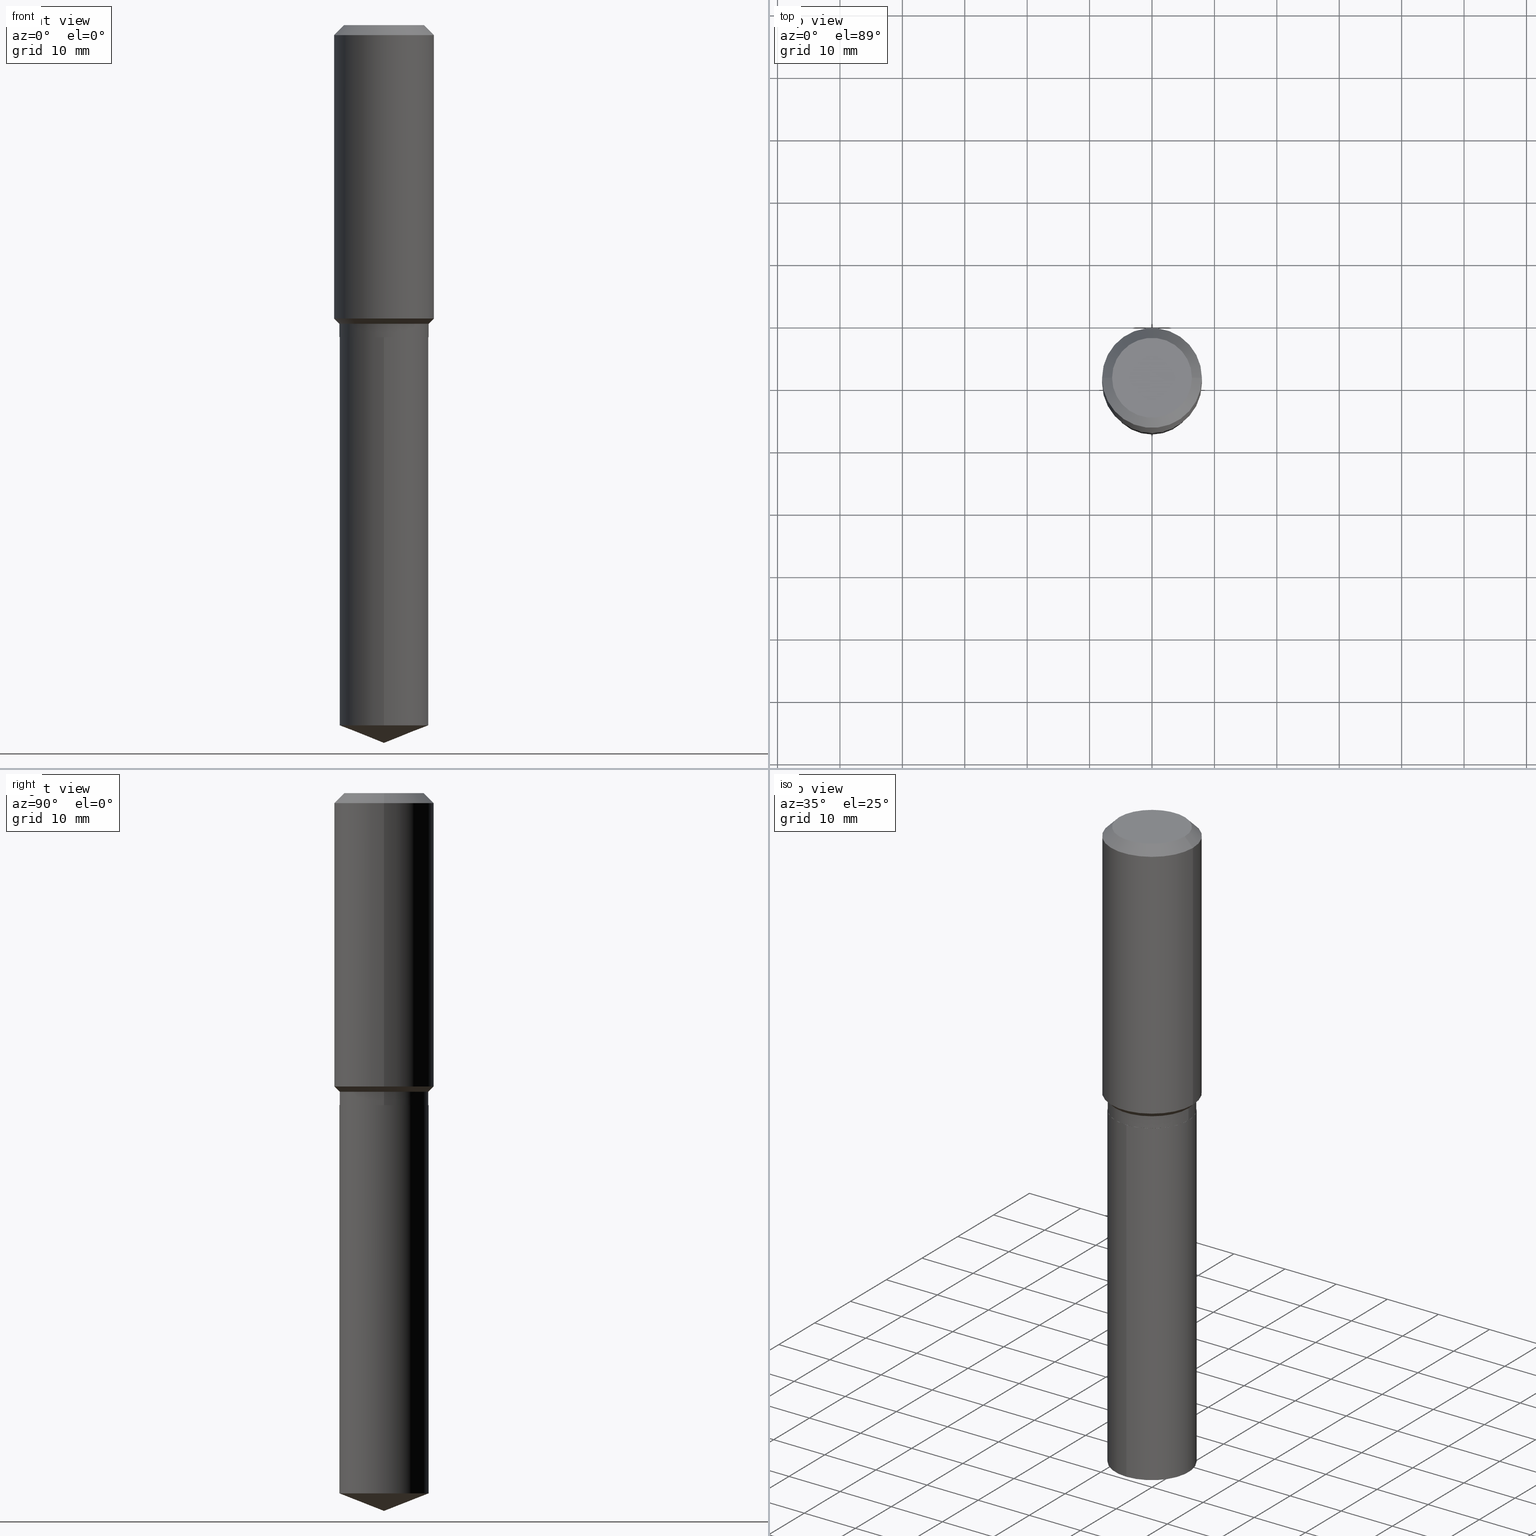
[diagram: canonical four-view strip — front | top / right | iso, engineering-drawing reading convention]
A machine part, canonical four-view strip (front | top / right | iso — engineering-drawing reading convention). The complete STEP part file that produces these views, byte-faithful:
ISO-10303-21;
HEADER;
FILE_DESCRIPTION (( 'STEP AP203' ),
    '1' );
FILE_NAME ('56430.STEP',
    '2024-04-24T17:37:38',
    ( '' ),
    ( '' ),
    'SwSTEP 2.0',
    'SolidWorks 2023',
    '' );
FILE_SCHEMA (( 'CONFIG_CONTROL_DESIGN' ));
ENDSEC;

DATA;
#1 = ORIENTED_EDGE ( 'NONE', *, *, #466, .T. ) ;
#2 = FACE_OUTER_BOUND ( 'NONE', #65, .T. ) ;
#3 = EDGE_CURVE ( 'NONE', #12, #281, #351, .T. ) ;
#4 = DIRECTION ( 'NONE',  ( -2.445468806185136877E-29, 3.491481338843145188E-15, 1.000000000000000000 ) ) ;
#5 = CIRCLE ( 'NONE', #58, 0.2807499999999999996 ) ;
#6 = AXIS2_PLACEMENT_3D ( 'NONE', #127, #240, #159 ) ;
#7 = DIRECTION ( 'NONE',  ( 1.000000000000000000, -6.982962677686266711E-15, 4.876176775795935793E-29 ) ) ;
#8 = ORIENTED_EDGE ( 'NONE', *, *, #27, .T. ) ;
#9 = DIRECTION ( 'NONE',  ( -1.000000000000000000, 6.982962677686265922E-15, -4.876176775795935793E-29 ) ) ;
#10 = EDGE_LOOP ( 'NONE', ( #41, #243, #1, #232 ) ) ;
#11 = EDGE_CURVE ( 'NONE', #342, #281, #14, .T. ) ;
#12 = VERTEX_POINT ( 'NONE', #48 ) ;
#13 = DIRECTION ( 'NONE',  ( -2.445161175172823126E-29, 3.491921883962048973E-15, 1.000000000000000000 ) ) ;
#14 = CIRCLE ( 'NONE', #203, 0.2812500000000000000 ) ;
#15 = AXIS2_PLACEMENT_3D ( 'NONE', #31, #258, #405 ) ;
#16 = CARTESIAN_POINT ( 'NONE',  ( -1.963958253099214392E-15, -0.2812500000000068834, -1.968499999999998362 ) ) ;
#17 = EDGE_CURVE ( 'NONE', #388, #33, #192, .T. ) ;
#18 = PERSON_AND_ORGANIZATION ( #182, #422 ) ;
#19 = DIRECTION ( 'NONE',  ( -2.445161175172823126E-29, 3.491921883962048579E-15, 1.000000000000000000 ) ) ;
#20 = APPROVAL_ROLE ( '' ) ;
#21 = CARTESIAN_POINT ( 'NONE',  ( 1.080042445169747483E-28, -1.542229763716328320E-14, -4.416812678733299080 ) ) ;
#22 = MANIFOLD_SOLID_BREP ( 'Body-Move/Copy2[2]', #470 ) ;
#23 = PERSON_AND_ORGANIZATION ( #182, #422 ) ;
#24 = CARTESIAN_POINT ( 'NONE',  ( 1.107071173671247307E-28, -1.581002552182656904E-14, -4.527599999999999625 ) ) ;
#25 = AXIS2_PLACEMENT_3D ( 'NONE', #32, #185, #333 ) ;
#26 = CYLINDRICAL_SURFACE ( 'NONE', #235, 0.2812500000000000000 ) ;
#27 = EDGE_CURVE ( 'NONE', #76, #33, #431, .T. ) ;
#28 = CARTESIAN_POINT ( 'NONE',  ( 4.813905344975440153E-29, -6.872981015512730130E-15, -1.968499999999999472 ) ) ;
#29 = CARTESIAN_POINT ( 'NONE',  ( 0.000000000000000000, 0.000000000000000000, 0.000000000000000000 ) ) ;
#30 = EDGE_CURVE ( 'NONE', #202, #12, #100, .T. ) ;
#31 = CARTESIAN_POINT ( 'NONE',  ( 4.812682610572347912E-29, -6.871235274843308626E-15, -1.967999999999999527 ) ) ;
#32 = CARTESIAN_POINT ( 'NONE',  ( -9.427742298522569579E-47, 1.346031739168368629E-32, 3.855188123715871501E-18 ) ) ;
#33 = VERTEX_POINT ( 'NONE', #214 ) ;
#34 = CARTESIAN_POINT ( 'NONE',  ( 0.3149500000000000077, -2.380642253931875190E-15, -0.06299000000000037902 ) ) ;
#35 = EDGE_LOOP ( 'NONE', ( #116, #316, #349, #442 ) ) ;
#36 = MANIFOLD_SOLID_BREP ( 'Body-Move/Copy2[1]', #477 ) ;
#37 = LOCAL_TIME ( 13, 37, 38.00000000000000000, #134 ) ;
#38 = CARTESIAN_POINT ( 'NONE',  ( -0.2812500000000000000, -4.726366188353557576E-15, -1.967999999999999527 ) ) ;
#39 = CC_DESIGN_PERSON_AND_ORGANIZATION_ASSIGNMENT ( #465, #92, ( #432 ) ) ;
#40 = DIRECTION ( 'NONE',  ( 1.000000000000000000, -6.982962677686264344E-15, 0.000000000000000000 ) ) ;
#41 = ORIENTED_EDGE ( 'NONE', *, *, #310, .F. ) ;
#42 = AXIS2_PLACEMENT_3D ( 'NONE', #474, #139, #435 ) ;
#43 = VECTOR ( 'NONE', #365, 39.37007874015748143 ) ;
#44 = DIRECTION ( 'NONE',  ( 1.000000000000000000, -6.982962677686266711E-15, 0.000000000000000000 ) ) ;
#45 = EDGE_CURVE ( 'NONE', #12, #202, #406, .T. ) ;
#46 = EDGE_LOOP ( 'NONE', ( #462, #83, #234, #298 ) ) ;
#47 = DIRECTION ( 'NONE',  ( -2.445161175172823126E-29, 3.491921883962048579E-15, 1.000000000000000000 ) ) ;
#48 = CARTESIAN_POINT ( 'NONE',  ( -1.963958253099154044E-15, -0.2812500000000154321, -4.416812678733297304 ) ) ;
#49 = CARTESIAN_POINT ( 'NONE',  ( -0.3149500000000000077, 1.979355685803558833E-15, -0.06299000000000037902 ) ) ;
#50 = ORIENTED_EDGE ( 'NONE', *, *, #121, .T. ) ;
#51 = DATE_AND_TIME ( #284, #314 ) ;
#52 = CARTESIAN_POINT ( 'NONE',  ( 1.540400801016026505E-30, -2.199284095337310628E-16, -0.06299000000000037902 ) ) ;
#53 = ADVANCED_FACE ( 'NONE', ( #398 ), #373, .T. ) ;
#54 = DIRECTION ( 'NONE',  ( -6.982962677686266711E-15, -1.000000000000000000, 3.498627837349990023E-15 ) ) ;
#55 = DIRECTION ( 'NONE',  ( 0.000000000000000000, 0.000000000000000000, 1.000000000000000000 ) ) ;
#56 = CARTESIAN_POINT ( 'NONE',  ( -9.427742298522569579E-47, 1.346031739168368629E-32, 3.855188123715871501E-18 ) ) ;
#57 = EDGE_CURVE ( 'NONE', #388, #423, #195, .T. ) ;
#58 = AXIS2_PLACEMENT_3D ( 'NONE', #402, #136, #287 ) ;
#59 = DIRECTION ( 'NONE',  ( -2.445161175172823126E-29, 3.491921883962048579E-15, 1.000000000000000000 ) ) ;
#60 = APPROVAL_PERSON_ORGANIZATION ( #434, #318, #20 ) ;
#61 = FACE_OUTER_BOUND ( 'NONE', #35, .T. ) ;
#62 = CARTESIAN_POINT ( 'NONE',  ( 0.3149500000000001743, -2.199284095337290660E-15, 1.535751875536930690E-29 ) ) ;
#63 = EDGE_CURVE ( 'NONE', #281, #342, #278, .T. ) ;
#64 = DIRECTION ( 'NONE',  ( 1.000000000000000000, -6.982962677686266711E-15, 0.000000000000000000 ) ) ;
#65 = EDGE_LOOP ( 'NONE', ( #391, #416, #70, #332 ) ) ;
#66 = CIRCLE ( 'NONE', #322, 0.2807499999999999996 ) ;
#67 = VECTOR ( 'NONE', #375, 39.37007874015748143 ) ;
#68 = DESIGN_CONTEXT ( 'detailed design', #257, 'design' ) ;
#69 = CARTESIAN_POINT ( 'NONE',  ( 0.2807499999999999996, -8.833447787273150424E-15, -1.968499999999999472 ) ) ;
#70 = ORIENTED_EDGE ( 'NONE', *, *, #291, .F. ) ;
#71 = DIRECTION ( 'NONE',  ( -2.445468806185136597E-29, 3.491481338843145583E-15, 1.000000000000000000 ) ) ;
#72 = ORIENTED_EDGE ( 'NONE', *, *, #433, .F. ) ;
#73 = DIRECTION ( 'NONE',  ( -2.445468806185136597E-29, 3.491481338843145583E-15, 1.000000000000000000 ) ) ;
#74 = ADVANCED_FACE ( 'NONE', ( #292 ), #358, .T. ) ;
#75 = APPROVAL_STATUS ( 'not_yet_approved' ) ;
#76 = VERTEX_POINT ( 'NONE', #103 ) ;
#77 = VECTOR ( 'NONE', #325, 39.37007874015748143 ) ;
#78 = CONICAL_SURFACE ( 'NONE', #352, 0.2807499999999999996, 0.7853981633975507526 ) ;
#79 = LINE ( 'NONE', #385, #156 ) ;
#80 = DIRECTION ( 'NONE',  ( -0.7071067811865453523, 2.468850131082234184E-15, -0.7071067811865496822 ) ) ;
#81 = ORIENTED_EDGE ( 'NONE', *, *, #433, .T. ) ;
#82 = EDGE_CURVE ( 'NONE', #152, #131, #93, .T. ) ;
#83 = ORIENTED_EDGE ( 'NONE', *, *, #439, .T. ) ;
#84 = CONICAL_SURFACE ( 'NONE', #173, 0.2807499999999999996, 0.7853981633975507526 ) ;
#85 = APPLICATION_PROTOCOL_DEFINITION ( 'international standard', 'config_control_design', 1994, #356 ) ;
#86 = ORIENTED_EDGE ( 'NONE', *, *, #439, .F. ) ;
#87 = DIRECTION ( 'NONE',  ( -0.7071067811865472397, 7.493145998870354160E-15, 0.7071067811865477948 ) ) ;
#88 = ORIENTED_EDGE ( 'NONE', *, *, #153, .F. ) ;
#89 = CALENDAR_DATE ( 2024, 24, 4 ) ;
#90 = DIRECTION ( 'NONE',  ( -2.445161175172823126E-29, 3.491921883962048973E-15, 1.000000000000000000 ) ) ;
#91 = EDGE_CURVE ( 'NONE', #274, #202, #361, .T. ) ;
#92 = PERSON_AND_ORGANIZATION_ROLE ( 'design_supplier' ) ;
#93 = CIRCLE ( 'NONE', #210, 0.2519600000000000173 ) ;
#94 = CONICAL_SURFACE ( 'NONE', #384, 0.3149500000000000077, 0.7853981633974452814 ) ;
#95 = FACE_OUTER_BOUND ( 'NONE', #413, .T. ) ;
#96 = DATE_AND_TIME ( #286, #37 ) ;
#97 = DIRECTION ( 'NONE',  ( 1.000000000000000000, -6.982962677686266711E-15, 0.000000000000000000 ) ) ;
#98 = EDGE_CURVE ( 'NONE', #33, #76, #306, .T. ) ;
#99 = DIRECTION ( 'NONE',  ( -2.438088387897960049E-29, 3.491481338843145188E-15, 1.000000000000000000 ) ) ;
#100 = CIRCLE ( 'NONE', #155, 0.2812500000000000000 ) ;
#101 = FACE_OUTER_BOUND ( 'NONE', #485, .T. ) ;
#102 = APPROVAL_PERSON_ORGANIZATION ( #397, #379, #338 ) ;
#103 = CARTESIAN_POINT ( 'NONE',  ( 0.3149500000000000077, -2.419212504871020909E-15, -0.06299000000000037902 ) ) ;
#104 = ADVANCED_FACE ( 'NONE', ( #101 ), #163, .T. ) ;
#105 = DIRECTION ( 'NONE',  ( 1.000000000000000000, -6.982962677686268288E-15, 0.000000000000000000 ) ) ;
#106 = EDGE_LOOP ( 'NONE', ( #301, #219, #368, #376 ) ) ;
#107 = DIRECTION ( 'NONE',  ( -1.000000000000000000, 6.982962677686266711E-15, 0.000000000000000000 ) ) ;
#108 = ORIENTED_EDGE ( 'NONE', *, *, #17, .T. ) ;
#109 = AXIS2_PLACEMENT_3D ( 'NONE', #256, #467, #54 ) ;
#110 = VECTOR ( 'NONE', #143, 39.37007874015748143 ) ;
#111 = FACE_OUTER_BOUND ( 'NONE', #420, .T. ) ;
#112 = ORIENTED_EDGE ( 'NONE', *, *, #11, .T. ) ;
#113 = EDGE_CURVE ( 'NONE', #222, #224, #5, .T. ) ;
#114 = PLANE ( 'NONE',  #362 ) ;
#115 = DIRECTION ( 'NONE',  ( 2.445468806185136597E-29, -3.491481338843145583E-15, -1.000000000000000000 ) ) ;
#116 = ORIENTED_EDGE ( 'NONE', *, *, #425, .F. ) ;
#117 = CIRCLE ( 'NONE', #25, 0.2519600000000000173 ) ;
#118 = CC_DESIGN_APPROVAL ( #379, ( #252 ) ) ;
#119 = DIRECTION ( 'NONE',  ( -6.982962677686266711E-15, -1.000000000000000000, 3.885294924322507688E-15 ) ) ;
#120 = DIRECTION ( 'NONE',  ( -2.445468806185136597E-29, 3.491481338843145583E-15, 1.000000000000000000 ) ) ;
#121 = EDGE_CURVE ( 'NONE', #274, #12, #209, .T. ) ;
#122 = DIRECTION ( 'NONE',  ( -2.445468806185136597E-29, 3.491481338843145583E-15, 1.000000000000000000 ) ) ;
#123 = ORIENTED_EDGE ( 'NONE', *, *, #82, .F. ) ;
#124 = DIRECTION ( 'NONE',  ( -2.445468806185136597E-29, 3.491481338843145583E-15, 1.000000000000000000 ) ) ;
#125 = ORIENTED_EDGE ( 'NONE', *, *, #244, .F. ) ;
#126 = AXIS2_PLACEMENT_3D ( 'NONE', #176, #99, #251 ) ;
#127 = CARTESIAN_POINT ( 'NONE',  ( 4.813905344975440153E-29, -6.872981015512730130E-15, -1.968499999999999472 ) ) ;
#128 = ORIENTED_EDGE ( 'NONE', *, *, #82, .T. ) ;
#129 = APPROVAL_ROLE ( '' ) ;
#130 = ADVANCED_FACE ( 'NONE', ( #61 ), #382, .T. ) ;
#131 = VERTEX_POINT ( 'NONE', #363 ) ;
#132 = COORDINATED_UNIVERSAL_TIME_OFFSET ( 5, 0, .BEHIND. ) ;
#133 = DIRECTION ( 'NONE',  ( -2.445161175172823126E-29, 3.491921883962048579E-15, 1.000000000000000000 ) ) ;
#134 = COORDINATED_UNIVERSAL_TIME_OFFSET ( 5, 0, .BEHIND. ) ;
#135 = CIRCLE ( 'NONE', #453, 0.3149500000000002298 ) ;
#136 = DIRECTION ( 'NONE',  ( -2.445468806185136597E-29, 3.491481338843145583E-15, 1.000000000000000000 ) ) ;
#137 = ADVANCED_FACE ( 'NONE', ( #436 ), #293, .F. ) ;
#138 = COORDINATED_UNIVERSAL_TIME_OFFSET ( 5, 0, .BEHIND. ) ;
#139 = DIRECTION ( 'NONE',  ( -2.445468806185136597E-29, 3.491481338843145583E-15, 1.000000000000000000 ) ) ;
#140 = CARTESIAN_POINT ( 'NONE',  ( 1.540400801016026505E-30, -2.199284095337310628E-16, -0.06299000000000037902 ) ) ;
#141 = CARTESIAN_POINT ( 'NONE',  ( -0.2807499999999999996, -4.878132284866248466E-15, -1.968499999999999472 ) ) ;
#142 = VECTOR ( 'NONE', #302, 39.37007874015748143 ) ;
#143 = DIRECTION ( 'NONE',  ( -2.445468806185136877E-29, 3.491481338843145188E-15, 1.000000000000000000 ) ) ;
#144 = ORIENTED_EDGE ( 'NONE', *, *, #466, .F. ) ;
#145 = CARTESIAN_POINT ( 'NONE',  ( 0.000000000000000000, 0.000000000000000000, 0.000000000000000000 ) ) ;
#146 = DIRECTION ( 'NONE',  ( -2.445468806185136597E-29, 3.491481338843145583E-15, 1.000000000000000000 ) ) ;
#147 = ORIENTED_EDGE ( 'NONE', *, *, #291, .T. ) ;
#148 = AXIS2_PLACEMENT_3D ( 'NONE', #463, #124, #7 ) ;
#149 = ADVANCED_FACE ( 'NONE', ( #399 ), #26, .T. ) ;
#150 = DIRECTION ( 'NONE',  ( -2.445468806185136597E-29, 3.491481338843145583E-15, 1.000000000000000000 ) ) ;
#151 = DIRECTION ( 'NONE',  ( 0.7071067811865453523, -7.319954787623248157E-15, -0.7071067811865496822 ) ) ;
#152 = VERTEX_POINT ( 'NONE', #326 ) ;
#153 = EDGE_CURVE ( 'NONE', #224, #197, #476, .T. ) ;
#154 = ORIENTED_EDGE ( 'NONE', *, *, #360, .F. ) ;
#155 = AXIS2_PLACEMENT_3D ( 'NONE', #254, #59, #285 ) ;
#156 = VECTOR ( 'NONE', #13, 39.37007874015748143 ) ;
#157 = FACE_OUTER_BOUND ( 'NONE', #265, .T. ) ;
#158 = EDGE_LOOP ( 'NONE', ( #411, #309 ) ) ;
#159 = DIRECTION ( 'NONE',  ( 6.982962677686265922E-15, 1.000000000000000000, -3.491921883962048973E-15 ) ) ;
#160 = ORIENTED_EDGE ( 'NONE', *, *, #98, .T. ) ;
#161 = ORIENTED_EDGE ( 'NONE', *, *, #3, .T. ) ;
#162 = CC_DESIGN_PERSON_AND_ORGANIZATION_ASSIGNMENT ( #242, #390, ( #175 ) ) ;
#163 = CONICAL_SURFACE ( 'NONE', #245, 0.3149500000000000077, 0.7853981633974452814 ) ;
#164 = AXIS2_PLACEMENT_3D ( 'NONE', #206, #55, #208 ) ;
#165 = CYLINDRICAL_SURFACE ( 'NONE', #148, 0.2812500000000000000 ) ;
#166 = CARTESIAN_POINT ( 'NONE',  ( -0.3149500000000001743, 2.237854346276436774E-15, -1.549218606675783237E-29 ) ) ;
#167 = DATE_AND_TIME ( #89, #336 ) ;
#168 = DIRECTION ( 'NONE',  ( 1.000000000000000000, -6.982962677686266711E-15, 4.876115136096691995E-29 ) ) ;
#169 = SECURITY_CLASSIFICATION_LEVEL ( 'unclassified' ) ;
#170 = ADVANCED_FACE ( 'NONE', ( #95 ), #345, .T. ) ;
#171 = DIRECTION ( 'NONE',  ( 1.000000000000000000, -6.982962677686265922E-15, 4.876176775795935232E-29 ) ) ;
#172 = MECHANICAL_CONTEXT ( 'NONE', #356, 'mechanical' ) ;
#173 = AXIS2_PLACEMENT_3D ( 'NONE', #294, #441, #105 ) ;
#174 = DIRECTION ( 'NONE',  ( -6.497071151882123780E-15, -0.9304175679820250178, 0.3665012267242958033 ) ) ;
#175 = PRODUCT ( '56430', '56430', '', ( #172 ) ) ;
#176 = CARTESIAN_POINT ( 'NONE',  ( 4.813905344975440153E-29, -6.872981015512730130E-15, -1.968499999999999472 ) ) ;
#177 = DIRECTION ( 'NONE',  ( -2.445161175172823126E-29, 3.491921883962048579E-15, 1.000000000000000000 ) ) ;
#178 = EDGE_CURVE ( 'NONE', #224, #222, #66, .T. ) ;
#179 = AXIS2_PLACEMENT_3D ( 'NONE', #207, #19, #213 ) ;
#180 = CARTESIAN_POINT ( 'NONE',  ( -1.963958253099214392E-15, -0.2812500000000068834, -1.968499999999998362 ) ) ;
#181 = VECTOR ( 'NONE', #415, 39.37007874015748143 ) ;
#182 = PERSON ( 'UNSPECIFIED', 'UNSPECIFIED', 'UNSPECIFIED', ('UNSPECIFIED'), ('UNSPECIFIED'), ('UNSPECIFIED') ) ;
#183 = CARTESIAN_POINT ( 'NONE',  ( 1.998401444325390241E-15, 0.2812499999999931166, -1.968500000000000583 ) ) ;
#184 = ORIENTED_EDGE ( 'NONE', *, *, #30, .F. ) ;
#185 = DIRECTION ( 'NONE',  ( -2.445468806185136597E-29, 3.491481338843145583E-15, 1.000000000000000000 ) ) ;
#186 = LINE ( 'NONE', #490, #142 ) ;
#187 = ORIENTED_EDGE ( 'NONE', *, *, #220, .T. ) ;
#188 = AXIS2_PLACEMENT_3D ( 'NONE', #237, #315, #44 ) ;
#189 = LINE ( 'NONE', #62, #67 ) ;
#190 = ORIENTED_EDGE ( 'NONE', *, *, #27, .F. ) ;
#191 = CARTESIAN_POINT ( 'NONE',  ( 0.2812500000000000000, -8.835193527942572716E-15, -1.967999999999999527 ) ) ;
#192 = LINE ( 'NONE', #166, #270 ) ;
#193 = DIRECTION ( 'NONE',  ( -6.982962677686266711E-15, -1.000000000000000000, 3.498627837349990023E-15 ) ) ;
#194 = ORIENTED_EDGE ( 'NONE', *, *, #344, .T. ) ;
#195 = CIRCLE ( 'NONE', #42, 0.3149500000000002298 ) ;
#196 = CARTESIAN_POINT ( 'NONE',  ( -0.2812500000000000000, -4.579898546189087510E-15, -1.884099999999999664 ) ) ;
#197 = VERTEX_POINT ( 'NONE', #38 ) ;
#198 = LENGTH_MEASURE_WITH_UNIT ( LENGTH_MEASURE( 0.02539999999999999897 ), #380 );
#199 = ORIENTED_EDGE ( 'NONE', *, *, #121, .F. ) ;
#200 = EDGE_CURVE ( 'NONE', #222, #386, #296, .T. ) ;
#201 = FACE_OUTER_BOUND ( 'NONE', #330, .T. ) ;
#202 = VERTEX_POINT ( 'NONE', #447 ) ;
#203 = AXIS2_PLACEMENT_3D ( 'NONE', #457, #239, #307 ) ;
#204 = DATE_TIME_ROLE ( 'creation_date' ) ;
#205 = DIRECTION ( 'NONE',  ( -6.982962677686266711E-15, -1.000000000000000000, 3.885294924322507688E-15 ) ) ;
#206 = CARTESIAN_POINT ( 'NONE',  ( 0.000000000000000000, 0.000000000000000000, 0.000000000000000000 ) ) ;
#207 = CARTESIAN_POINT ( 'NONE',  ( 4.813905344975440153E-29, -6.872981015512730130E-15, -1.968499999999999472 ) ) ;
#208 = DIRECTION ( 'NONE',  ( 1.000000000000000000, 0.000000000000000000, 0.000000000000000000 ) ) ;
#209 = LINE ( 'NONE', #24, #421 ) ;
#210 = AXIS2_PLACEMENT_3D ( 'NONE', #56, #321, #168 ) ;
#211 = LOCAL_TIME ( 13, 37, 38.00000000000000000, #138 ) ;
#212 = CC_DESIGN_SECURITY_CLASSIFICATION ( #252, ( #432 ) ) ;
#213 = DIRECTION ( 'NONE',  ( -6.982962677686266711E-15, -1.000000000000000000, 3.885294924322507688E-15 ) ) ;
#214 = CARTESIAN_POINT ( 'NONE',  ( -0.3149500000000000077, -1.102428393188106153E-15, -0.06299000000000037902 ) ) ;
#215 = ADVANCED_FACE ( 'NONE', ( #331 ), #94, .T. ) ;
#216 = LINE ( 'NONE', #34, #366 ) ;
#217 = AXIS2_PLACEMENT_3D ( 'NONE', #52, #323, #97 ) ;
#218 = CARTESIAN_POINT ( 'NONE',  ( 1.540400801016026505E-30, -2.199284095337310628E-16, -0.06299000000000037902 ) ) ;
#219 = ORIENTED_EDGE ( 'NONE', *, *, #57, .T. ) ;
#220 = EDGE_CURVE ( 'NONE', #277, #346, #327, .T. ) ;
#221 = CARTESIAN_POINT ( 'NONE',  ( 4.812682610572347912E-29, -6.871235274843308626E-15, -1.967999999999999527 ) ) ;
#222 = VERTEX_POINT ( 'NONE', #69 ) ;
#223 = CYLINDRICAL_SURFACE ( 'NONE', #299, 0.2812500000000000000 ) ;
#224 = VERTEX_POINT ( 'NONE', #482 ) ;
#225 = CYLINDRICAL_SURFACE ( 'NONE', #393, 0.3149500000000001743 ) ;
#226 = AXIS2_PLACEMENT_3D ( 'NONE', #21, #133, #319 ) ;
#227 = AXIS2_PLACEMENT_3D ( 'NONE', #221, #340, #329 ) ;
#228 = CARTESIAN_POINT ( 'NONE',  ( -4.713871149261284790E-47, 6.730158695841843144E-33, 1.927594061857935750E-18 ) ) ;
#229 = EDGE_LOOP ( 'NONE', ( #128, #194 ) ) ;
#230 = CC_DESIGN_DATE_AND_TIME_ASSIGNMENT ( #96, #249, ( #252 ) ) ;
#231 = DIRECTION ( 'NONE',  ( -2.445161175172823126E-29, 3.491921883962048579E-15, 1.000000000000000000 ) ) ;
#232 = ORIENTED_EDGE ( 'NONE', *, *, #389, .F. ) ;
#233 = CARTESIAN_POINT ( 'NONE',  ( 0.2812500000000000000, -1.963958253099262512E-15, 1.371424718192607012E-29 ) ) ;
#234 = ORIENTED_EDGE ( 'NONE', *, *, #63, .F. ) ;
#235 = AXIS2_PLACEMENT_3D ( 'NONE', #28, #177, #205 ) ;
#236 = CONICAL_SURFACE ( 'NONE', #347, 99.94676754584037326, 1.195550537616120845 ) ;
#237 = CARTESIAN_POINT ( 'NONE',  ( 4.607507777733415285E-29, -6.578299990514369283E-15, -1.884099999999999664 ) ) ;
#238 = APPROVAL ( #357, 'UNSPECIFIED' ) ;
#239 = DIRECTION ( 'NONE',  ( -2.445161175172823126E-29, 3.491921883962048579E-15, 1.000000000000000000 ) ) ;
#240 = DIRECTION ( 'NONE',  ( 2.445161175172822285E-29, -3.491921883962048973E-15, -1.000000000000000000 ) ) ;
#241 = EDGE_LOOP ( 'NONE', ( #383, #108, #190, #283 ) ) ;
#242 = PERSON_AND_ORGANIZATION ( #182, #422 ) ;
#243 = ORIENTED_EDGE ( 'NONE', *, *, #339, .T. ) ;
#244 = EDGE_CURVE ( 'NONE', #131, #76, #216, .T. ) ;
#245 = AXIS2_PLACEMENT_3D ( 'NONE', #140, #248, #469 ) ;
#246 =( GEOMETRIC_REPRESENTATION_CONTEXT ( 3 ) GLOBAL_UNCERTAINTY_ASSIGNED_CONTEXT ( ( #479 ) ) GLOBAL_UNIT_ASSIGNED_CONTEXT ( ( #456, #305, #419 ) ) REPRESENTATION_CONTEXT ( 'NONE', 'WORKASPACE' ) );
#247 = DATE_AND_TIME ( #282, #211 ) ;
#248 = DIRECTION ( 'NONE',  ( 2.445468806185136597E-29, -3.491481338843145583E-15, -1.000000000000000000 ) ) ;
#249 = DATE_TIME_ROLE ( 'classification_date' ) ;
#250 = CARTESIAN_POINT ( 'NONE',  ( 0.000000000000000000, 0.000000000000000000, 0.000000000000000000 ) ) ;
#251 = DIRECTION ( 'NONE',  ( 1.000000000000000000, -6.982962677686265922E-15, 4.876176775795935793E-29 ) ) ;
#252 = SECURITY_CLASSIFICATION ( '', '', #169 ) ;
#253 = ADVANCED_FACE ( 'NONE', ( #403 ), #225, .T. ) ;
#254 = CARTESIAN_POINT ( 'NONE',  ( 1.080042445169747483E-28, -1.542229763716328320E-14, -4.416812678733299080 ) ) ;
#255 = PRODUCT_DEFINITION_SHAPE ( 'NONE', 'NONE',  #408 ) ;
#256 = CARTESIAN_POINT ( 'NONE',  ( -8.519487069056982775E-28, 1.216680812173049124E-13, 34.84247874015748181 ) ) ;
#257 = APPLICATION_CONTEXT ( 'configuration controlled 3d designs of mechanical parts and assemblies' ) ;
#258 = DIRECTION ( 'NONE',  ( -2.445468806185136597E-29, 3.491481338843145583E-15, 1.000000000000000000 ) ) ;
#259 = CALENDAR_DATE ( 2024, 24, 4 ) ;
#260 = CC_DESIGN_PERSON_AND_ORGANIZATION_ASSIGNMENT ( #23, #317, ( #408 ) ) ;
#261 = VECTOR ( 'NONE', #90, 39.37007874015748143 ) ;
#262 = DIRECTION ( 'NONE',  ( 1.000000000000000000, -6.982962677686266711E-15, 4.876176775795935793E-29 ) ) ;
#263 = VECTOR ( 'NONE', #80, 39.37007874015748143 ) ;
#264 = CARTESIAN_POINT ( 'NONE',  ( 4.813905344975440153E-29, -6.872981015512730130E-15, -1.968499999999999472 ) ) ;
#265 = EDGE_LOOP ( 'NONE', ( #86, #312, #161, #381 ) ) ;
#266 = CARTESIAN_POINT ( 'NONE',  ( 4.813905344975440153E-29, -6.872981015512730130E-15, -1.968499999999999472 ) ) ;
#267 = ORIENTED_EDGE ( 'NONE', *, *, #91, .F. ) ;
#268 = LINE ( 'NONE', #233, #181 ) ;
#269 = EDGE_CURVE ( 'NONE', #423, #76, #189, .T. ) ;
#270 = VECTOR ( 'NONE', #4, 39.37007874015748143 ) ;
#271 = ORIENTED_EDGE ( 'NONE', *, *, #483, .F. ) ;
#272 = CIRCLE ( 'NONE', #227, 0.2812500000000000000 ) ;
#273 = DIRECTION ( 'NONE',  ( 1.000000000000000000, -6.982962677686266711E-15, 0.000000000000000000 ) ) ;
#274 = VERTEX_POINT ( 'NONE', #304 ) ;
#275 = ADVANCED_FACE ( 'NONE', ( #409 ), #223, .T. ) ;
#276 = FACE_OUTER_BOUND ( 'NONE', #418, .T. ) ;
#277 = VERTEX_POINT ( 'NONE', #337 ) ;
#278 = CIRCLE ( 'NONE', #179, 0.2812500000000000000 ) ;
#279 = APPROVAL_PERSON_ORGANIZATION ( #472, #238, #129 ) ;
#280 = CYLINDRICAL_SURFACE ( 'NONE', #478, 0.2812500000000000000 ) ;
#281 = VERTEX_POINT ( 'NONE', #180 ) ;
#282 = CALENDAR_DATE ( 2024, 24, 4 ) ;
#283 = ORIENTED_EDGE ( 'NONE', *, *, #269, .F. ) ;
#284 = CALENDAR_DATE ( 2024, 24, 4 ) ;
#285 = DIRECTION ( 'NONE',  ( -6.982962677686266711E-15, -1.000000000000000000, 3.885294924322507688E-15 ) ) ;
#286 = CALENDAR_DATE ( 2024, 24, 4 ) ;
#287 = DIRECTION ( 'NONE',  ( 1.000000000000000000, -6.982962677686268288E-15, 0.000000000000000000 ) ) ;
#288 = APPLICATION_PROTOCOL_DEFINITION ( 'international standard', 'config_control_design', 1994, #257 ) ;
#289 = DIMENSIONAL_EXPONENTS ( 1.000000000000000000, 0.000000000000000000, 0.000000000000000000, 0.000000000000000000, 0.000000000000000000, 0.000000000000000000, 0.000000000000000000 ) ;
#290 = DIRECTION ( 'NONE',  ( -2.445468806185136597E-29, 3.491481338843145583E-15, 1.000000000000000000 ) ) ;
#291 = EDGE_CURVE ( 'NONE', #386, #197, #272, .T. ) ;
#292 = FACE_OUTER_BOUND ( 'NONE', #106, .T. ) ;
#293 = PLANE ( 'NONE',  #126 ) ;
#294 = CARTESIAN_POINT ( 'NONE',  ( 4.813905344975440153E-29, -6.872981015512730130E-15, -1.968499999999999472 ) ) ;
#295 = ADVANCED_BREP_SHAPE_REPRESENTATION ( '56430', ( #36, #22, #164 ), #246 ) ;
#296 = LINE ( 'NONE', #443, #43 ) ;
#297 = DATE_AND_TIME ( #259, #438 ) ;
#298 = ORIENTED_EDGE ( 'NONE', *, *, #3, .F. ) ;
#299 = AXIS2_PLACEMENT_3D ( 'NONE', #145, #367, #262 ) ;
#300 = CARTESIAN_POINT ( 'NONE',  ( -0.2812500000000000000, -4.726366188353557576E-15, -1.884099999999999664 ) ) ;
#301 = ORIENTED_EDGE ( 'NONE', *, *, #17, .F. ) ;
#302 = DIRECTION ( 'NONE',  ( 0.7071067811865472397, -2.468850131082253905E-15, 0.7071067811865477948 ) ) ;
#303 = PRODUCT_RELATED_PRODUCT_CATEGORY ( 'detail', '', ( #175 ) ) ;
#304 = CARTESIAN_POINT ( 'NONE',  ( 1.107071173671247307E-28, -1.581002552182656904E-14, -4.527599999999999625 ) ) ;
#305 =( NAMED_UNIT ( * ) PLANE_ANGLE_UNIT ( ) SI_UNIT ( $, .RADIAN. ) );
#306 = CIRCLE ( 'NONE', #217, 0.3149500000000000077 ) ;
#307 = DIRECTION ( 'NONE',  ( -6.982962677686266711E-15, -1.000000000000000000, 3.885294924322507688E-15 ) ) ;
#308 = LINE ( 'NONE', #49, #263 ) ;
#309 = ORIENTED_EDGE ( 'NONE', *, *, #178, .F. ) ;
#310 = EDGE_CURVE ( 'NONE', #197, #346, #480, .T. ) ;
#311 = CARTESIAN_POINT ( 'NONE',  ( 4.813905344975440153E-29, -6.872981015512730130E-15, -1.968499999999999472 ) ) ;
#312 = ORIENTED_EDGE ( 'NONE', *, *, #30, .T. ) ;
#313 = ORIENTED_EDGE ( 'NONE', *, *, #310, .T. ) ;
#314 = LOCAL_TIME ( 13, 37, 38.00000000000000000, #132 ) ;
#315 = DIRECTION ( 'NONE',  ( -2.445468806185136597E-29, 3.491481338843145583E-15, 1.000000000000000000 ) ) ;
#316 = ORIENTED_EDGE ( 'NONE', *, *, #389, .T. ) ;
#317 = PERSON_AND_ORGANIZATION_ROLE ( 'creator' ) ;
#318 = APPROVAL ( #427, 'UNSPECIFIED' ) ;
#319 = DIRECTION ( 'NONE',  ( -6.982962677686266711E-15, -1.000000000000000000, 3.885294924322507688E-15 ) ) ;
#320 = PERSON_AND_ORGANIZATION ( #182, #422 ) ;
#321 = DIRECTION ( 'NONE',  ( -2.445468806185136597E-29, 3.491481338843145583E-15, 1.000000000000000000 ) ) ;
#322 = AXIS2_PLACEMENT_3D ( 'NONE', #266, #73, #452 ) ;
#323 = DIRECTION ( 'NONE',  ( -2.445468806185136597E-29, 3.491481338843145583E-15, 1.000000000000000000 ) ) ;
#324 = CC_DESIGN_DATE_AND_TIME_ASSIGNMENT ( #51, #204, ( #408 ) ) ;
#325 = DIRECTION ( 'NONE',  ( 6.611014441532070533E-15, 0.9304175679820277933, 0.3665012267242892530 ) ) ;
#326 = CARTESIAN_POINT ( 'NONE',  ( -0.2519600000000000173, 1.869391481036695286E-15, 3.855188123703182704E-18 ) ) ;
#327 = CIRCLE ( 'NONE', #446, 0.2812500000000000000 ) ;
#328 = ADVANCED_FACE ( 'NONE', ( #2 ), #84, .T. ) ;
#329 = DIRECTION ( 'NONE',  ( 1.000000000000000000, -6.982962677686269866E-15, 0.000000000000000000 ) ) ;
#330 = EDGE_LOOP ( 'NONE', ( #199, #348, #451 ) ) ;
#331 = FACE_OUTER_BOUND ( 'NONE', #487, .T. ) ;
#332 = ORIENTED_EDGE ( 'NONE', *, *, #200, .F. ) ;
#333 = DIRECTION ( 'NONE',  ( 1.000000000000000000, -6.982962677686266711E-15, 4.876115136096691995E-29 ) ) ;
#334 = ORIENTED_EDGE ( 'NONE', *, *, #178, .T. ) ;
#335 = AXIS2_PLACEMENT_3D ( 'NONE', #364, #290, #430 ) ;
#336 = LOCAL_TIME ( 13, 37, 38.00000000000000000, #394 ) ;
#337 = CARTESIAN_POINT ( 'NONE',  ( 0.2812500000000000000, -8.542258243613632584E-15, -1.884099999999999664 ) ) ;
#338 = APPROVAL_ROLE ( '' ) ;
#339 = EDGE_CURVE ( 'NONE', #197, #386, #471, .T. ) ;
#340 = DIRECTION ( 'NONE',  ( -2.445468806185136597E-29, 3.491481338843145583E-15, 1.000000000000000000 ) ) ;
#341 = DIRECTION ( 'NONE',  ( 2.438088387897960049E-29, -3.491481338843145188E-15, -1.000000000000000000 ) ) ;
#342 = VERTEX_POINT ( 'NONE', #183 ) ;
#343 = CARTESIAN_POINT ( 'NONE',  ( -8.519487069056982775E-28, 1.216680812173049124E-13, 34.84247874015748181 ) ) ;
#344 = EDGE_CURVE ( 'NONE', #131, #152, #117, .T. ) ;
#345 = CONICAL_SURFACE ( 'NONE', #488, 0.2812500000000000000, 0.7853981633974479459 ) ;
#346 = VERTEX_POINT ( 'NONE', #300 ) ;
#347 = AXIS2_PLACEMENT_3D ( 'NONE', #343, #47, #193 ) ;
#348 = ORIENTED_EDGE ( 'NONE', *, *, #91, .T. ) ;
#349 = ORIENTED_EDGE ( 'NONE', *, *, #360, .T. ) ;
#350 = LINE ( 'NONE', #196, #414 ) ;
#351 = LINE ( 'NONE', #16, #261 ) ;
#352 = AXIS2_PLACEMENT_3D ( 'NONE', #264, #71, #370 ) ;
#353 = ADVANCED_FACE ( 'NONE', ( #111 ), #78, .T. ) ;
#354 = APPROVAL_DATE_TIME ( #167, #318 ) ;
#355 = CARTESIAN_POINT ( 'NONE',  ( 4.607507777733415285E-29, -6.578299990514369283E-15, -1.884099999999999664 ) ) ;
#356 = APPLICATION_CONTEXT ( 'configuration controlled 3d designs of mechanical parts and assemblies' ) ;
#357 = APPROVAL_STATUS ( 'not_yet_approved' ) ;
#358 = CYLINDRICAL_SURFACE ( 'NONE', #400, 0.3149500000000001743 ) ;
#359 = APPROVAL_DATE_TIME ( #247, #238 ) ;
#360 = EDGE_CURVE ( 'NONE', #277, #423, #186, .T. ) ;
#361 = LINE ( 'NONE', #437, #77 ) ;
#362 = AXIS2_PLACEMENT_3D ( 'NONE', #228, #341, #9 ) ;
#363 = CARTESIAN_POINT ( 'NONE',  ( 0.2519600000000000173, -2.054606664725195058E-15, 3.855188123729206640E-18 ) ) ;
#364 = CARTESIAN_POINT ( 'NONE',  ( 4.607507777733415285E-29, -6.578299990514369283E-15, -1.884099999999999664 ) ) ;
#365 = DIRECTION ( 'NONE',  ( 0.7071067811866199593, -2.468850131083015945E-15, 0.7071067811864750752 ) ) ;
#366 = VECTOR ( 'NONE', #151, 39.37007874015748143 ) ;
#367 = DIRECTION ( 'NONE',  ( -2.445468806185136597E-29, 3.491481338843145583E-15, 1.000000000000000000 ) ) ;
#368 = ORIENTED_EDGE ( 'NONE', *, *, #269, .T. ) ;
#369 = CARTESIAN_POINT ( 'NONE',  ( -0.2812500000000000000, 1.998401444325281773E-15, -1.383450494134192269E-29 ) ) ;
#370 = DIRECTION ( 'NONE',  ( 1.000000000000000000, -6.982962677686268288E-15, 0.000000000000000000 ) ) ;
#371 = ADVANCED_FACE ( 'NONE', ( #449 ), #114, .F. ) ;
#372 = EDGE_LOOP ( 'NONE', ( #267, #50, #184 ) ) ;
#373 = CONICAL_SURFACE ( 'NONE', #109, 99.94676754584037326, 1.195550537616120845 ) ;
#374 = CIRCLE ( 'NONE', #188, 0.2812500000000000000 ) ;
#375 = DIRECTION ( 'NONE',  ( -2.445468806185136877E-29, 3.491481338843145188E-15, 1.000000000000000000 ) ) ;
#376 = ORIENTED_EDGE ( 'NONE', *, *, #98, .F. ) ;
#377 = CARTESIAN_POINT ( 'NONE',  ( 4.525095478964975152E-29, -6.460637069395354421E-15, -1.850399999999999379 ) ) ;
#378 = ORIENTED_EDGE ( 'NONE', *, *, #200, .T. ) ;
#379 = APPROVAL ( #75, 'UNSPECIFIED' ) ;
#380 =( LENGTH_UNIT ( ) NAMED_UNIT ( * ) SI_UNIT ( $, .METRE. ) );
#381 = ORIENTED_EDGE ( 'NONE', *, *, #11, .F. ) ;
#382 = CONICAL_SURFACE ( 'NONE', #335, 0.2812500000000000000, 0.7853981633974479459 ) ;
#383 = ORIENTED_EDGE ( 'NONE', *, *, #483, .T. ) ;
#384 = AXIS2_PLACEMENT_3D ( 'NONE', #218, #115, #107 ) ;
#385 = CARTESIAN_POINT ( 'NONE',  ( 1.998401444325329499E-15, 0.2812499999999931166, -1.968500000000000583 ) ) ;
#386 = VERTEX_POINT ( 'NONE', #191 ) ;
#387 = CARTESIAN_POINT ( 'NONE',  ( 0.3149500000000002298, -8.659921164732645869E-15, -1.850399999999999379 ) ) ;
#388 = VERTEX_POINT ( 'NONE', #424 ) ;
#389 = EDGE_CURVE ( 'NONE', #346, #277, #374, .T. ) ;
#390 = PERSON_AND_ORGANIZATION_ROLE ( 'design_owner' ) ;
#391 = ORIENTED_EDGE ( 'NONE', *, *, #113, .T. ) ;
#392 = AXIS2_PLACEMENT_3D ( 'NONE', #455, #120, #273 ) ;
#393 = AXIS2_PLACEMENT_3D ( 'NONE', #29, #150, #407 ) ;
#394 = COORDINATED_UNIVERSAL_TIME_OFFSET ( 5, 0, .BEHIND. ) ;
#395 = DIRECTION ( 'NONE',  ( -2.445468806185136597E-29, 3.491481338843145583E-15, 1.000000000000000000 ) ) ;
#396 = ADVANCED_FACE ( 'NONE', ( #276 ), #417, .F. ) ;
#397 = PERSON_AND_ORGANIZATION ( #182, #422 ) ;
#398 = FACE_OUTER_BOUND ( 'NONE', #372, .T. ) ;
#399 = FACE_OUTER_BOUND ( 'NONE', #46, .T. ) ;
#400 = AXIS2_PLACEMENT_3D ( 'NONE', #250, #473, #171 ) ;
#401 = CC_DESIGN_APPROVAL ( #318, ( #432 ) ) ;
#402 = CARTESIAN_POINT ( 'NONE',  ( 4.813905344975440153E-29, -6.872981015512730130E-15, -1.968499999999999472 ) ) ;
#403 = FACE_OUTER_BOUND ( 'NONE', #241, .T. ) ;
#404 = CC_DESIGN_PERSON_AND_ORGANIZATION_ASSIGNMENT ( #320, #468, ( #252 ) ) ;
#405 = DIRECTION ( 'NONE',  ( 1.000000000000000000, -6.982962677686269866E-15, 0.000000000000000000 ) ) ;
#406 = CIRCLE ( 'NONE', #226, 0.2812500000000000000 ) ;
#407 = DIRECTION ( 'NONE',  ( 1.000000000000000000, -6.982962677686265922E-15, 4.876176775795935232E-29 ) ) ;
#408 = PRODUCT_DEFINITION ( 'UNKNOWN', '', #432, #68 ) ;
#409 = FACE_OUTER_BOUND ( 'NONE', #10, .T. ) ;
#410 = SHAPE_DEFINITION_REPRESENTATION ( #255, #295 ) ;
#411 = ORIENTED_EDGE ( 'NONE', *, *, #113, .F. ) ;
#412 = CARTESIAN_POINT ( 'NONE',  ( 4.607507777733415285E-29, -6.578299990514369283E-15, -1.884099999999999664 ) ) ;
#413 = EDGE_LOOP ( 'NONE', ( #187, #426, #271, #154 ) ) ;
#414 = VECTOR ( 'NONE', #87, 39.37007874015748143 ) ;
#415 = DIRECTION ( 'NONE',  ( -2.445468806185136877E-29, 3.491481338843145188E-15, 1.000000000000000000 ) ) ;
#416 = ORIENTED_EDGE ( 'NONE', *, *, #153, .T. ) ;
#417 = PLANE ( 'NONE',  #6 ) ;
#418 = EDGE_LOOP ( 'NONE', ( #481, #112 ) ) ;
#419 =( NAMED_UNIT ( * ) SI_UNIT ( $, .STERADIAN. ) SOLID_ANGLE_UNIT ( ) );
#420 = EDGE_LOOP ( 'NONE', ( #88, #334, #378, #448 ) ) ;
#421 = VECTOR ( 'NONE', #174, 39.37007874015748854 ) ;
#422 = ORGANIZATION ( 'UNSPECIFIED', 'UNSPECIFIED', '' ) ;
#423 = VERTEX_POINT ( 'NONE', #387 ) ;
#424 = CARTESIAN_POINT ( 'NONE',  ( -0.3149500000000002298, -4.222782723118916858E-15, -1.850399999999999379 ) ) ;
#425 = EDGE_CURVE ( 'NONE', #346, #388, #350, .T. ) ;
#426 = ORIENTED_EDGE ( 'NONE', *, *, #425, .T. ) ;
#427 = APPROVAL_STATUS ( 'not_yet_approved' ) ;
#428 = EDGE_LOOP ( 'NONE', ( #147, #313, #459, #144 ) ) ;
#429 = PERSON_AND_ORGANIZATION_ROLE ( 'creator' ) ;
#430 = DIRECTION ( 'NONE',  ( 1.000000000000000000, -6.982962677686266711E-15, 0.000000000000000000 ) ) ;
#431 = CIRCLE ( 'NONE', #392, 0.3149500000000000077 ) ;
#432 = PRODUCT_DEFINITION_FORMATION_WITH_SPECIFIED_SOURCE ( 'ANY', '', #175, .NOT_KNOWN. ) ;
#433 = EDGE_CURVE ( 'NONE', #152, #33, #308, .T. ) ;
#434 = PERSON_AND_ORGANIZATION ( #182, #422 ) ;
#435 = DIRECTION ( 'NONE',  ( 1.000000000000000000, -6.982962677686264344E-15, 0.000000000000000000 ) ) ;
#436 = FACE_OUTER_BOUND ( 'NONE', #158, .T. ) ;
#437 = CARTESIAN_POINT ( 'NONE',  ( 1.107193350030501191E-28, -1.580829109569344990E-14, -4.527599999999999625 ) ) ;
#438 = LOCAL_TIME ( 13, 37, 38.00000000000000000, #450 ) ;
#439 = EDGE_CURVE ( 'NONE', #202, #342, #79, .T. ) ;
#440 = DIRECTION ( 'NONE',  ( -0.7071067811866199593, 7.493145998870616062E-15, 0.7071067811864750752 ) ) ;
#441 = DIRECTION ( 'NONE',  ( -2.445468806185136597E-29, 3.491481338843145583E-15, 1.000000000000000000 ) ) ;
#442 = ORIENTED_EDGE ( 'NONE', *, *, #57, .F. ) ;
#443 = CARTESIAN_POINT ( 'NONE',  ( 0.2807499999999999996, -8.833447787273150424E-15, -1.968499999999999472 ) ) ;
#444 = ORIENTED_EDGE ( 'NONE', *, *, #344, .F. ) ;
#445 = ADVANCED_FACE ( 'NONE', ( #157 ), #280, .T. ) ;
#446 = AXIS2_PLACEMENT_3D ( 'NONE', #412, #146, #64 ) ;
#447 = CARTESIAN_POINT ( 'NONE',  ( 1.998401444325389452E-15, 0.2812499999999845679, -4.416812678733299968 ) ) ;
#448 = ORIENTED_EDGE ( 'NONE', *, *, #339, .F. ) ;
#449 = FACE_OUTER_BOUND ( 'NONE', #229, .T. ) ;
#450 = COORDINATED_UNIVERSAL_TIME_OFFSET ( 5, 0, .BEHIND. ) ;
#451 = ORIENTED_EDGE ( 'NONE', *, *, #45, .F. ) ;
#452 = DIRECTION ( 'NONE',  ( 1.000000000000000000, -6.982962677686268288E-15, 0.000000000000000000 ) ) ;
#453 = AXIS2_PLACEMENT_3D ( 'NONE', #377, #122, #40 ) ;
#454 = ADVANCED_FACE ( 'NONE', ( #201 ), #236, .T. ) ;
#455 = CARTESIAN_POINT ( 'NONE',  ( 1.540400801016026505E-30, -2.199284095337310628E-16, -0.06299000000000037902 ) ) ;
#456 =( CONVERSION_BASED_UNIT ( 'INCH', #198 ) LENGTH_UNIT ( ) NAMED_UNIT ( #289 ) );
#457 = CARTESIAN_POINT ( 'NONE',  ( 4.813905344975440153E-29, -6.872981015512730130E-15, -1.968499999999999472 ) ) ;
#458 = FACE_OUTER_BOUND ( 'NONE', #428, .T. ) ;
#459 = ORIENTED_EDGE ( 'NONE', *, *, #220, .F. ) ;
#460 = ADVANCED_FACE ( 'NONE', ( #458 ), #165, .T. ) ;
#461 = VECTOR ( 'NONE', #440, 39.37007874015748143 ) ;
#462 = ORIENTED_EDGE ( 'NONE', *, *, #45, .T. ) ;
#463 = CARTESIAN_POINT ( 'NONE',  ( 0.000000000000000000, 0.000000000000000000, 0.000000000000000000 ) ) ;
#464 = ORIENTED_EDGE ( 'NONE', *, *, #244, .T. ) ;
#465 = PERSON_AND_ORGANIZATION ( #182, #422 ) ;
#466 = EDGE_CURVE ( 'NONE', #386, #277, #268, .T. ) ;
#467 = DIRECTION ( 'NONE',  ( -2.445161175172823126E-29, 3.491921883962048579E-15, 1.000000000000000000 ) ) ;
#468 = PERSON_AND_ORGANIZATION_ROLE ( 'classification_officer' ) ;
#469 = DIRECTION ( 'NONE',  ( -1.000000000000000000, 6.982962677686266711E-15, 0.000000000000000000 ) ) ;
#470 = CLOSED_SHELL ( 'NONE', ( #328, #104, #253, #170, #460, #275, #130, #74, #215, #371, #137, #353 ) ) ;
#471 = CIRCLE ( 'NONE', #15, 0.2812500000000000000 ) ;
#472 = PERSON_AND_ORGANIZATION ( #182, #422 ) ;
#473 = DIRECTION ( 'NONE',  ( -2.445468806185136597E-29, 3.491481338843145583E-15, 1.000000000000000000 ) ) ;
#474 = CARTESIAN_POINT ( 'NONE',  ( 4.525095478964975152E-29, -6.460637069395354421E-15, -1.850399999999999379 ) ) ;
#475 = CC_DESIGN_PERSON_AND_ORGANIZATION_ASSIGNMENT ( #18, #429, ( #432 ) ) ;
#476 = LINE ( 'NONE', #141, #461 ) ;
#477 = CLOSED_SHELL ( 'NONE', ( #149, #454, #53, #445, #396 ) ) ;
#478 = AXIS2_PLACEMENT_3D ( 'NONE', #311, #231, #119 ) ;
#479 = UNCERTAINTY_MEASURE_WITH_UNIT (LENGTH_MEASURE( 1.000000000000000082E-05 ), #456, 'distance_accuracy_value', 'NONE');
#480 = LINE ( 'NONE', #369, #110 ) ;
#481 = ORIENTED_EDGE ( 'NONE', *, *, #63, .T. ) ;
#482 = CARTESIAN_POINT ( 'NONE',  ( -0.2807499999999999996, -4.875483057692138054E-15, -1.968499999999999472 ) ) ;
#483 = EDGE_CURVE ( 'NONE', #423, #388, #135, .T. ) ;
#484 = APPROVAL_DATE_TIME ( #297, #379 ) ;
#485 = EDGE_LOOP ( 'NONE', ( #444, #464, #8, #72 ) ) ;
#486 = DIRECTION ( 'NONE',  ( 1.000000000000000000, -6.982962677686266711E-15, 0.000000000000000000 ) ) ;
#487 = EDGE_LOOP ( 'NONE', ( #125, #123, #81, #160 ) ) ;
#488 = AXIS2_PLACEMENT_3D ( 'NONE', #355, #395, #486 ) ;
#489 = CC_DESIGN_APPROVAL ( #238, ( #408 ) ) ;
#490 = CARTESIAN_POINT ( 'NONE',  ( 0.2812500000000000000, -8.542258243613632584E-15, -1.884099999999999664 ) ) ;
ENDSEC;
END-ISO-10303-21;
